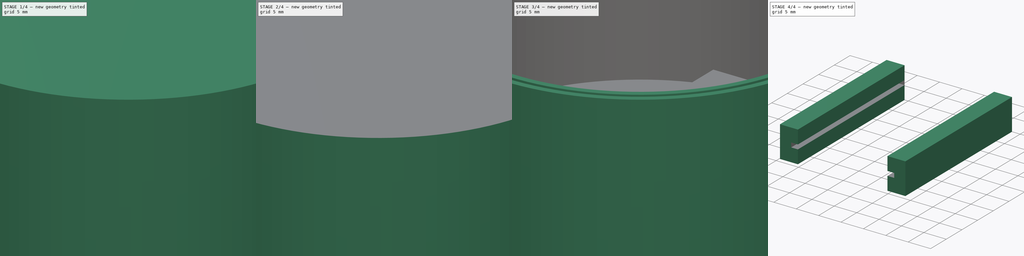
[diagram: build sequence overview — one tinted view per stage of 4, left to right]
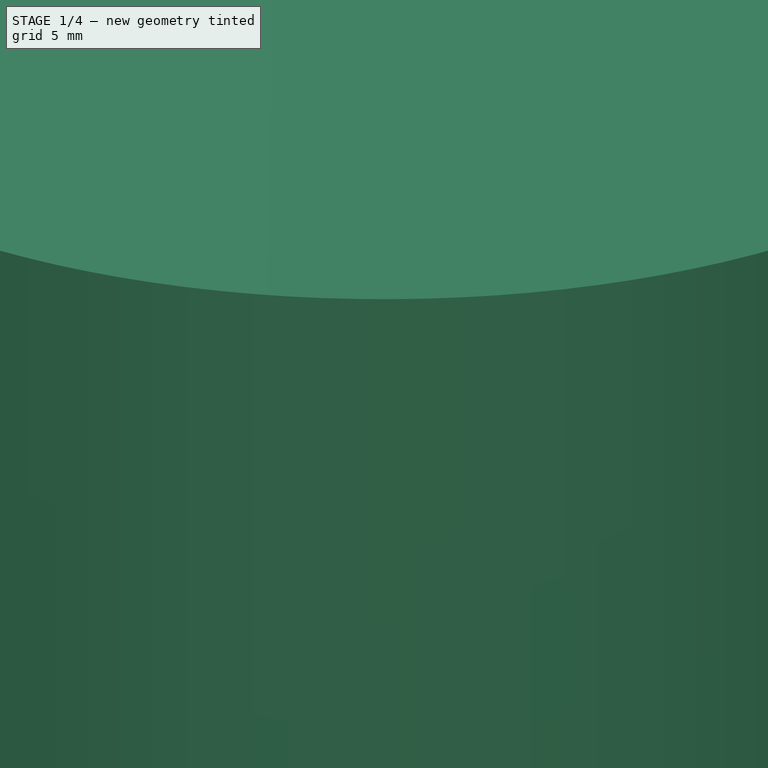
[diagram: stage 1 of 4 — iso view after this stage's code; geometry added in this stage tinted green]
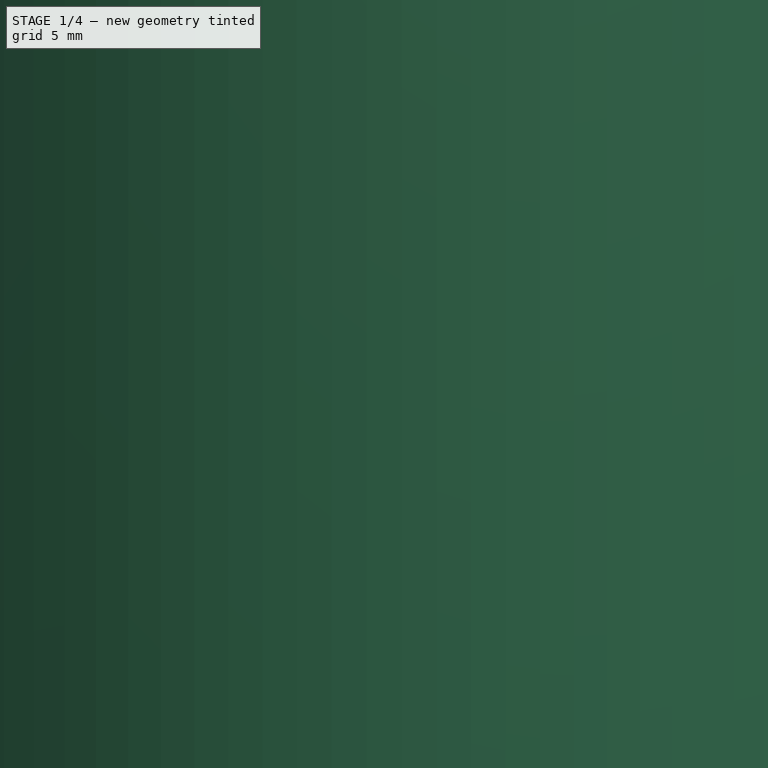
[diagram: stage 1 of 4 — front view after this stage's code; geometry added in this stage tinted green]
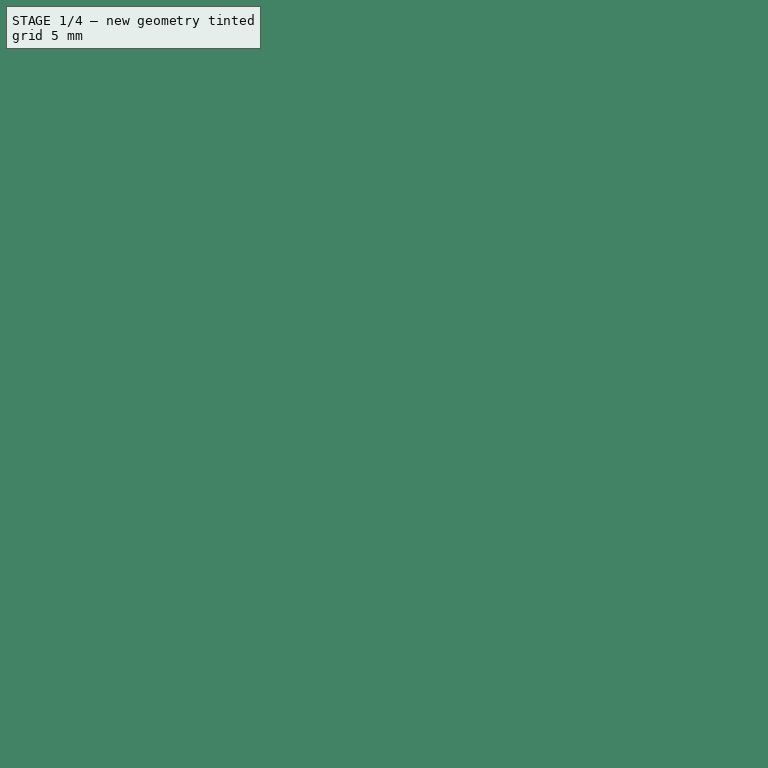
[diagram: stage 1 of 4 — top view after this stage's code; geometry added in this stage tinted green]
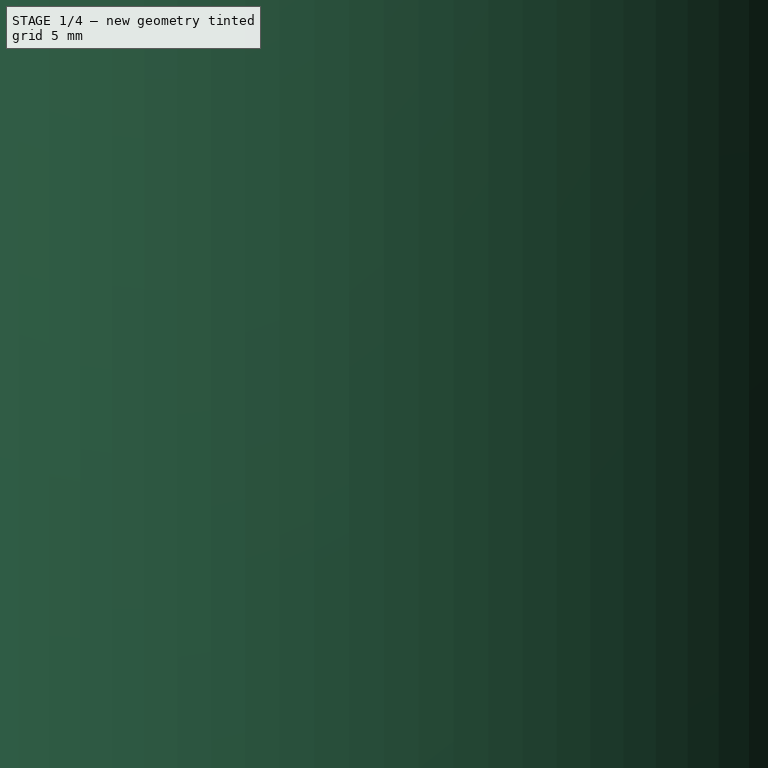
[diagram: stage 1 of 4 — right view after this stage's code; geometry added in this stage tinted green]
FCSTD DOCUMENT  (FreeCAD 0.18R4 (GitTag))
Label: Lamp_bottom
License: All rights reserved
LicenseURL: http://en.wikipedia.org/wiki/All_rights_reserved
objects: Sketcher::SketchObject×5, Part::Extrusion×5, Part::Cut×5, Part::Box×1
note: 16 computed .brp shape members not serialized (recipe doc carries the construction recipe); baked Part::Feature solids carry a one-line shape summary decoded from their .brp

FEATURE [Sketcher::SketchObject] Sketch
  sketch-geometry (1):
    g0: Circle CenterX=0 CenterY=0 CenterZ=0 NormalX=0 NormalY=0 NormalZ=1 AngleXU=0 Radius=50
  constraints (2):
    c: Radius(g0) = 50
    c: Coincident(g0,g-1)
FEATURE [Part::Extrusion] Extrude
  Base = -> Sketch
  Dir = (0,0,1)
  DirMode = 2
  FaceMakerClass = Part::FaceMakerBullseye
  LengthFwd = 60
  LengthRev = 0
  Solid = true
  Symmetric = false
FEATURE [Sketcher::SketchObject] Sketch003
  Placement = pos=(0,50,0) rot=(1,0,0;1.5708rad)
  sketch-geometry (6):
    g0: LineSegment StartX=-2.5 StartY=23 StartZ=0 EndX=2.5 EndY=23 EndZ=0
    g1: LineSegment StartX=2.5 StartY=20 StartZ=0 EndX=-2.5 EndY=20 EndZ=0
    g2: LineSegment StartX=-2.5 StartY=20 StartZ=0 EndX=-3.5 EndY=21.7321 EndZ=0
    g3: LineSegment StartX=2.5 StartY=20 StartZ=0 EndX=3.5 EndY=21.7321 EndZ=0
    g4: LineSegment StartX=3.5 StartY=21.7321 StartZ=0 EndX=2.5 EndY=23 EndZ=0
    g5: LineSegment StartX=-3.5 StartY=21.7321 StartZ=0 EndX=-2.5 EndY=23 EndZ=0
  constraints (18):
    c: Parallel(g0,g-1)
    c: DistanceY(g-1,g0) = 23
    c: DistanceX(g0,g0) = 5
    c: DistanceX(g-1,g0) = 2.5
    c: Parallel(g1,g-1)
    c: DistanceY(g1,g0) = 3
    c: Distance(g1) = 5
    c: DistanceX(g-1,g1) = 2.5
    c: Coincident(g2,g1)
    c: Distance(g2) = 2
    c: DistanceX(g2,g2) = 1
    c: Distance(g3) = 2
    c: Coincident(g1,g3)
    c: DistanceX(g3,g3) = 1
    c: Coincident(g0,g4)
    c: Coincident(g3,g4)
    c: Coincident(g0,g5)
    c: Coincident(g2,g5)
FEATURE [Part::Extrusion] Extrude003
  Base = -> Sketch003
  Dir = (0,-1,-2e-16)
  DirMode = 2
  FaceMakerClass = Part::FaceMakerBullseye
  LengthFwd = 4.5
  LengthRev = 0
  Solid = true
  Symmetric = false
FEATURE [Part::Box] Box  label="Куб"
  AttacherType = Attacher::AttachEngine3D
  Height = 1
  Length = 23
  Placement = pos=(-11.5,9.8,23) rot=(0,0,1;0rad)
  Width = 34
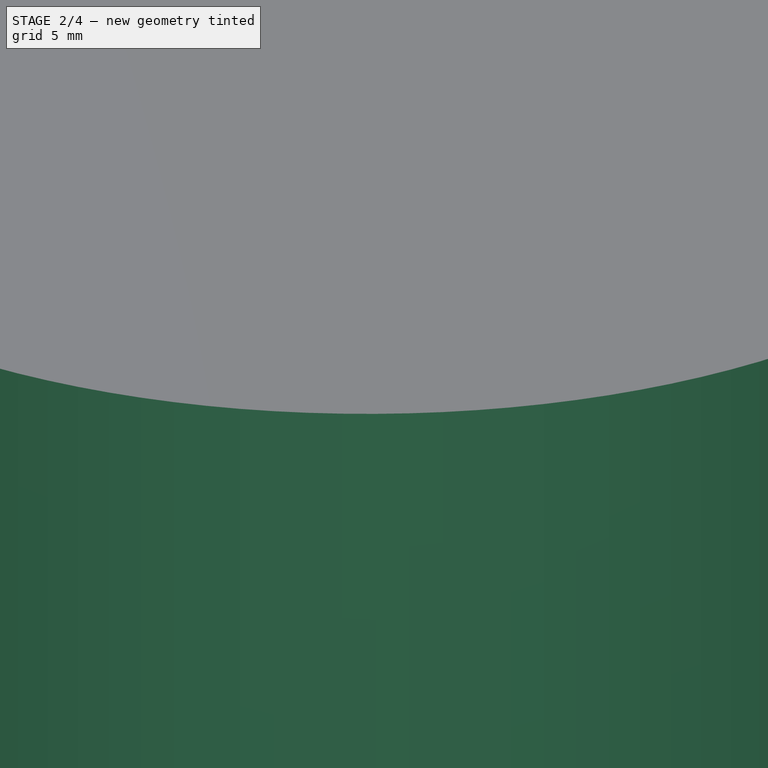
[diagram: stage 2 of 4 — iso view after this stage's code; geometry added in this stage tinted green]
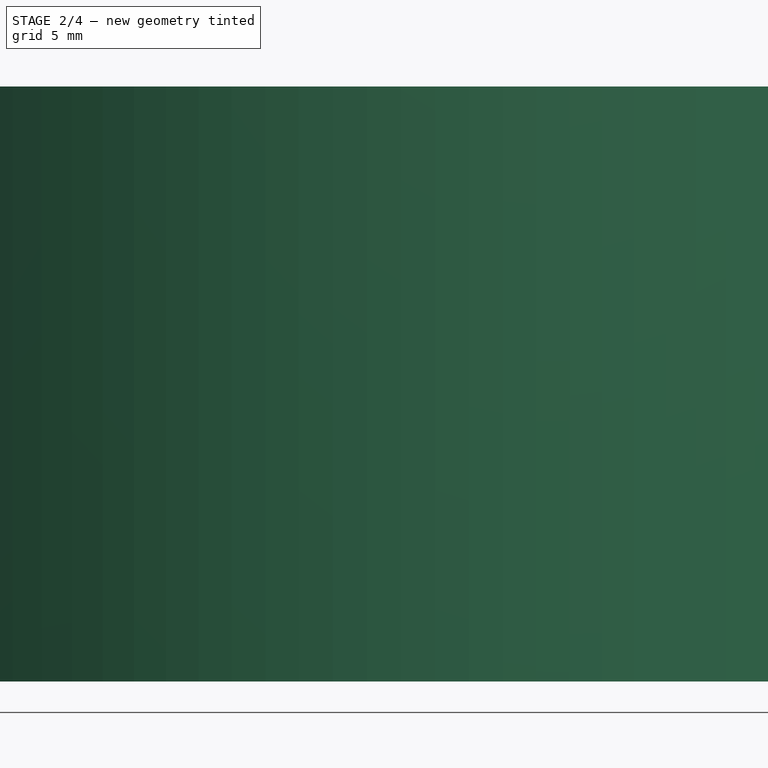
[diagram: stage 2 of 4 — front view after this stage's code; geometry added in this stage tinted green]
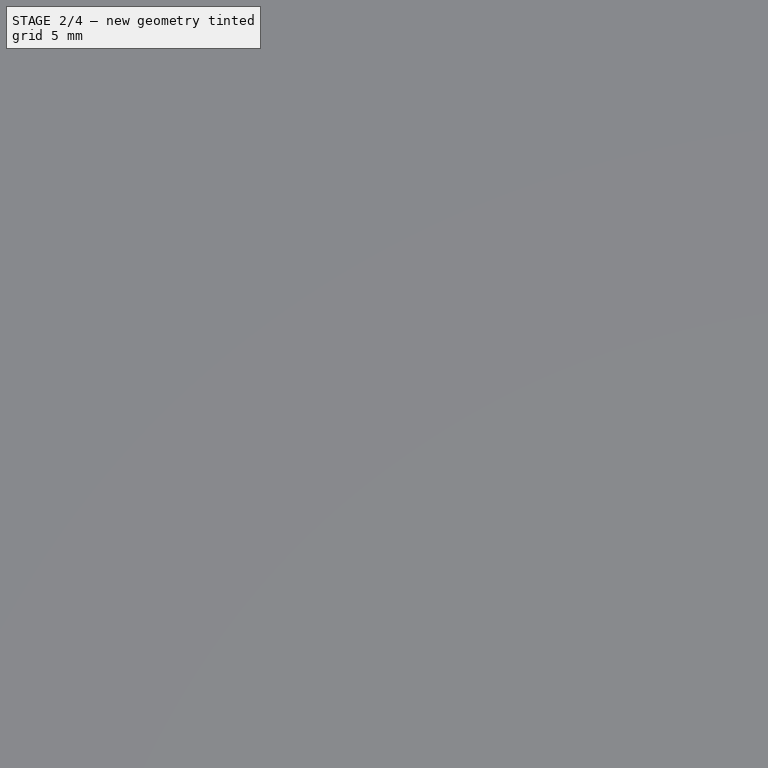
[diagram: stage 2 of 4 — top view after this stage's code; geometry added in this stage tinted green]
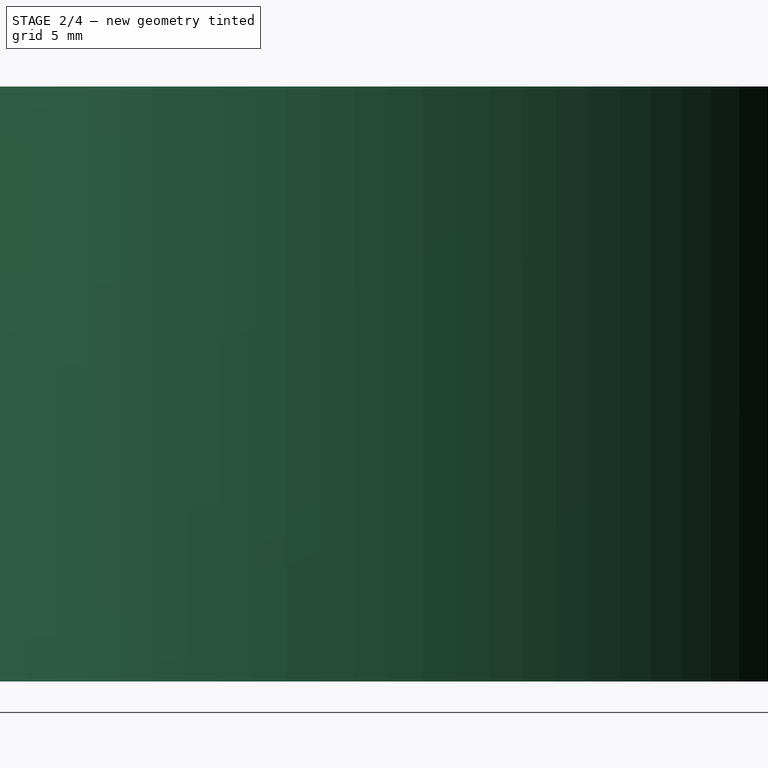
[diagram: stage 2 of 4 — right view after this stage's code; geometry added in this stage tinted green]
FEATURE [Sketcher::SketchObject] Sketch001
  MapMode = 5
  Placement = pos=(0,0,60) rot=(0,0,1;0rad)
  Support = -> [Extrude]
  sketch-geometry (2):
    g0: Circle CenterX=0 CenterY=0 CenterZ=0 NormalX=0 NormalY=0 NormalZ=1 AngleXU=0 Radius=48.5
    g1: Circle CenterX=0 CenterY=0 CenterZ=0 NormalX=0 NormalY=0 NormalZ=1 AngleXU=0 Radius=47.5
  constraints (4):
    c: Radius(g0) = 48.5
    c: Coincident(g0,g-1)
    c: Radius(g1) = 47.5
    c: Coincident(g1,g0)
FEATURE [Part::Extrusion] Extrude001
  Base = -> Sketch001
  Dir = (0,0,1)
  DirMode = 2
  FaceMakerClass = Part::FaceMakerBullseye
  LengthFwd = -20
  LengthRev = 0
  Solid = true
  Symmetric = false
FEATURE [Part::Cut] Cut
  Base = -> Extrude
  Tool = -> Extrude001
FEATURE [Sketcher::SketchObject] Sketch002
  MapMode = 5
  Placement = pos=(0,0,60) rot=(0,0,1;0rad)
  Support = -> [Cut]
  sketch-geometry (1):
    g0: Circle CenterX=0 CenterY=0 CenterZ=0 NormalX=0 NormalY=0 NormalZ=1 AngleXU=0 Radius=46
  constraints (2):
    c: Radius(g0) = 46
    c: Coincident(g0,g-1)
FEATURE [Part::Extrusion] Extrude002
  Base = -> Sketch002
  Dir = (0,0,1)
  DirMode = 2
  FaceMakerClass = Part::FaceMakerBullseye
  LengthFwd = -40
  LengthRev = 0
  Solid = true
  Symmetric = false
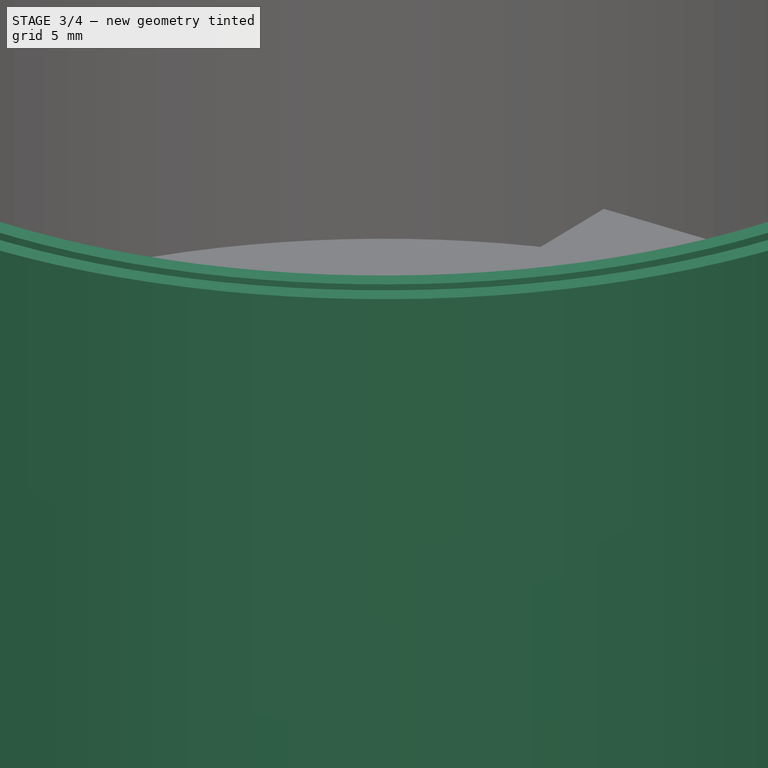
[diagram: stage 3 of 4 — iso view after this stage's code; geometry added in this stage tinted green]
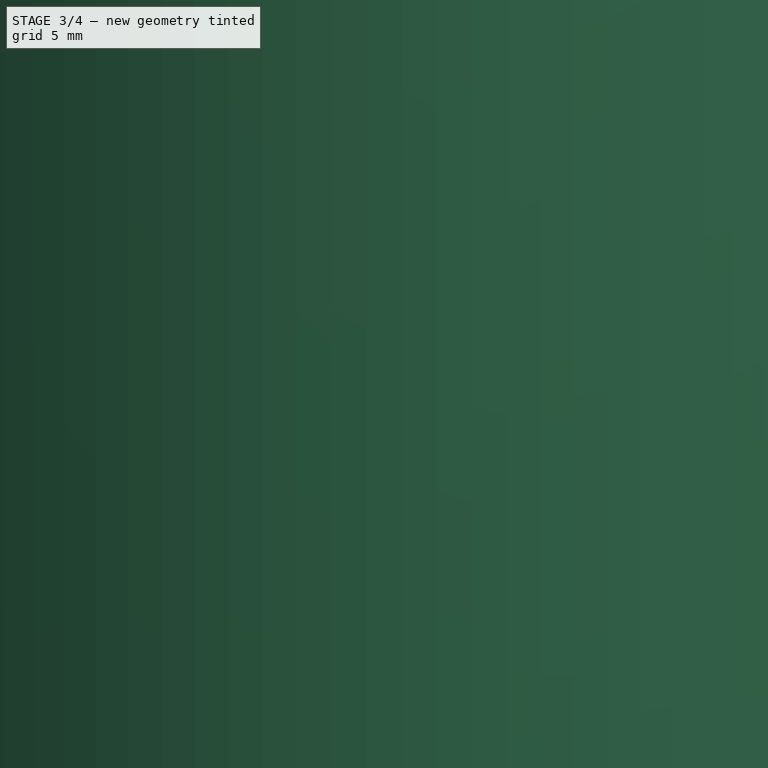
[diagram: stage 3 of 4 — front view after this stage's code; geometry added in this stage tinted green]
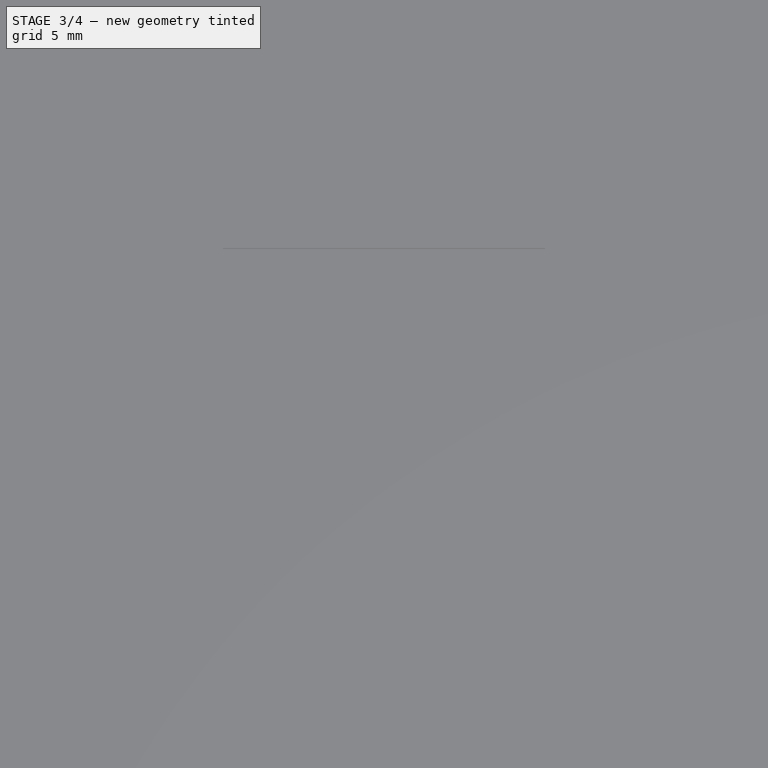
[diagram: stage 3 of 4 — top view after this stage's code; geometry added in this stage tinted green]
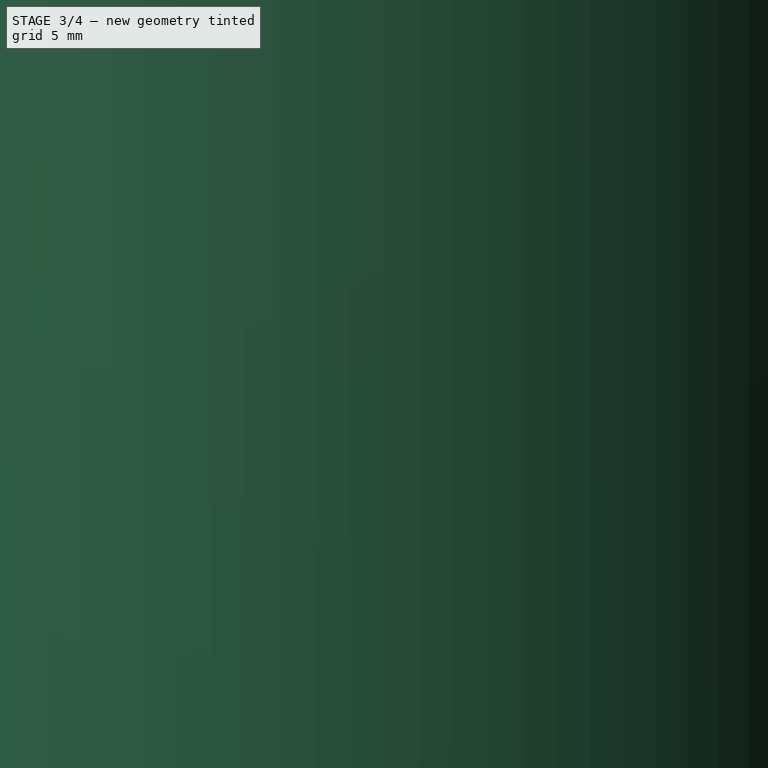
[diagram: stage 3 of 4 — right view after this stage's code; geometry added in this stage tinted green]
FEATURE [Part::Cut] Cut001
  Base = -> Extrude
  Tool = -> Extrude001
FEATURE [Part::Cut] Cut002
  Base = -> Cut001
  Tool = -> Extrude002
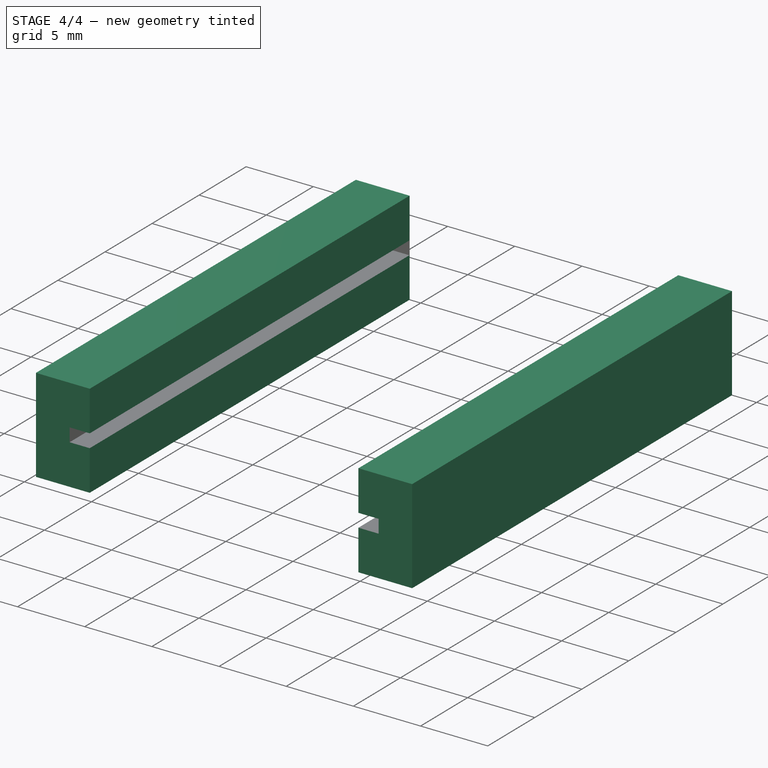
[diagram: stage 4 of 4 — iso view after this stage's code; geometry added in this stage tinted green]
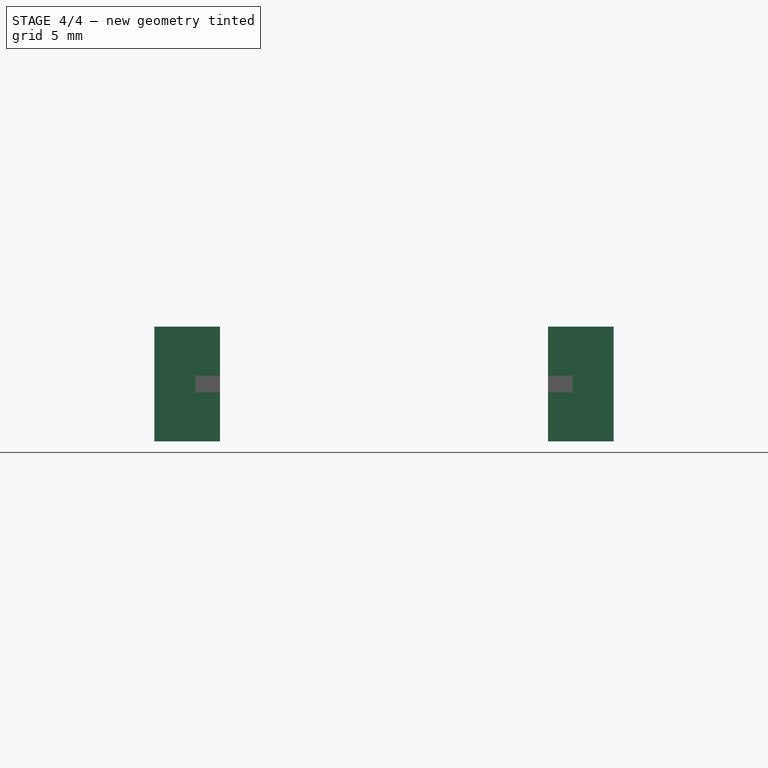
[diagram: stage 4 of 4 — front view after this stage's code; geometry added in this stage tinted green]
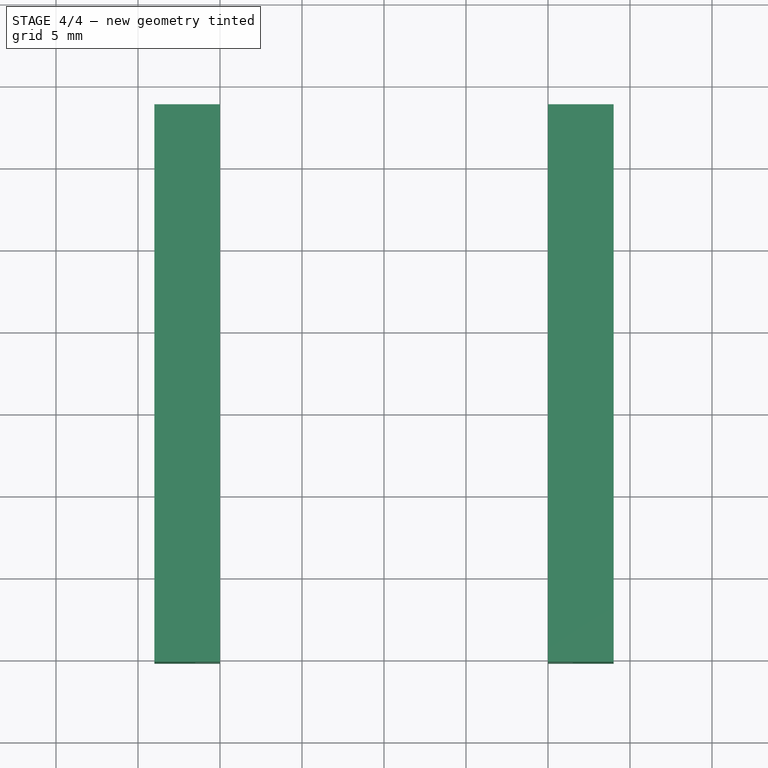
[diagram: stage 4 of 4 — top view after this stage's code; geometry added in this stage tinted green]
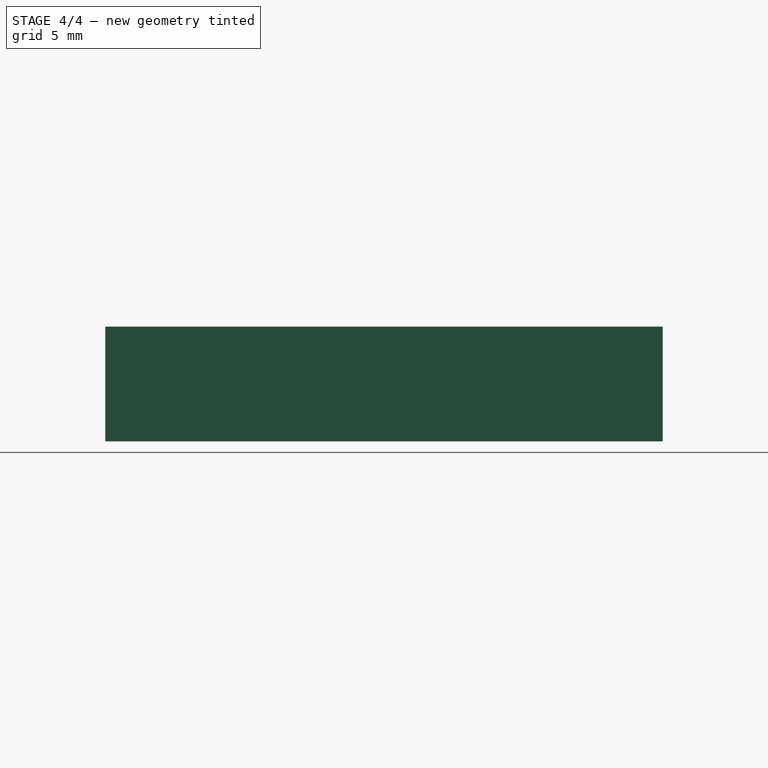
[diagram: stage 4 of 4 — right view after this stage's code; geometry added in this stage tinted green]
FEATURE [Part::Cut] Cut003
  Base = -> Cut002
  Tool = -> Extrude003
FEATURE [Sketcher::SketchObject] Sketch004
  ExternalGeometry = -> [Cut003]
  MapMode = 5
  Placement = pos=(0,0,20) rot=(0,0,1;0rad)
  Support = -> [Cut003]
  sketch-geometry (8):
    g0: LineSegment StartX=-14 StartY=43.8178 StartZ=0 EndX=-14 EndY=9.8178 EndZ=0
    g1: LineSegment StartX=14 StartY=43.8178 StartZ=0 EndX=14 EndY=9.8178 EndZ=0
    g2: LineSegment StartX=-14 StartY=9.8178 StartZ=0 EndX=-10 EndY=9.8178 EndZ=0
    g3: LineSegment StartX=-10 StartY=43.8178 StartZ=0 EndX=-10 EndY=9.8178 EndZ=0
    g4: LineSegment StartX=10 StartY=9.8178 StartZ=0 EndX=14 EndY=9.8178 EndZ=0
    g5: LineSegment StartX=10 StartY=43.8178 StartZ=0 EndX=10 EndY=9.8178 EndZ=0
    g6: LineSegment StartX=-14 StartY=43.8178 StartZ=0 EndX=-10 EndY=43.8178 EndZ=0
    g7: LineSegment StartX=10 StartY=43.8178 StartZ=0 EndX=14 EndY=43.8178 EndZ=0
  constraints (24):
    c: Distance(g0) = 34
    c: Parallel(g0,g-2)
    c: Distance(g1) = 34
    c: Parallel(g1,g-2)
    c: Distance(g2) = 4
    c: Parallel(g2,g-1)
    c: Coincident(g2,g0)
    c: Distance(g3) = 34
    c: Parallel(g3,g-2)
    c: Coincident(g2,g3)
    c: Distance(g4) = 4
    c: Parallel(g4,g-1)
    c: Coincident(g1,g4)
    c: Distance(g5) = 34
    c: Parallel(g5,g-2)
    c: Coincident(g4,g5)
    c: Parallel(g7,g-1)
    c: Distance(g6) = 4
    c: Distance(g7) = 4
    c: Parallel(g6,g-1)
    c: PointOnObject(g0,g-3)
    c: Coincident(g0,g6)
    c: PointOnObject(g1,g-3)
    c: Coincident(g7,g1)
FEATURE [Part::Extrusion] Extrude004
  Base = -> Sketch004
  Dir = (0,0,1)
  DirMode = 2
  FaceMakerClass = Part::FaceMakerBullseye
  LengthFwd = 7
  LengthRev = 0
  Solid = true
  Symmetric = false
FEATURE [Part::Cut] Cut004
  Base = -> Extrude004
  Tool = -> Box
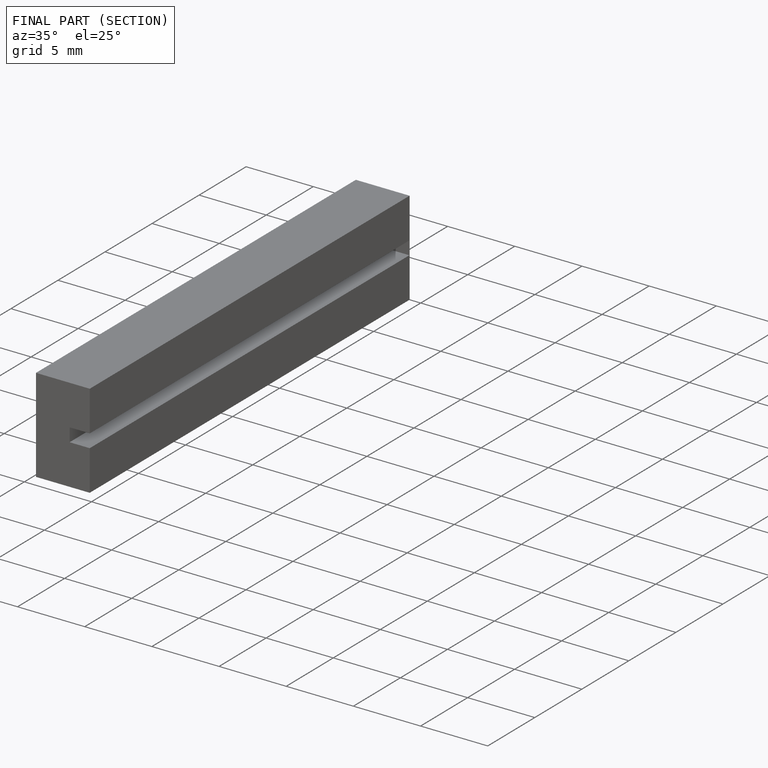
[diagram: finished part — half-section view (interior)]
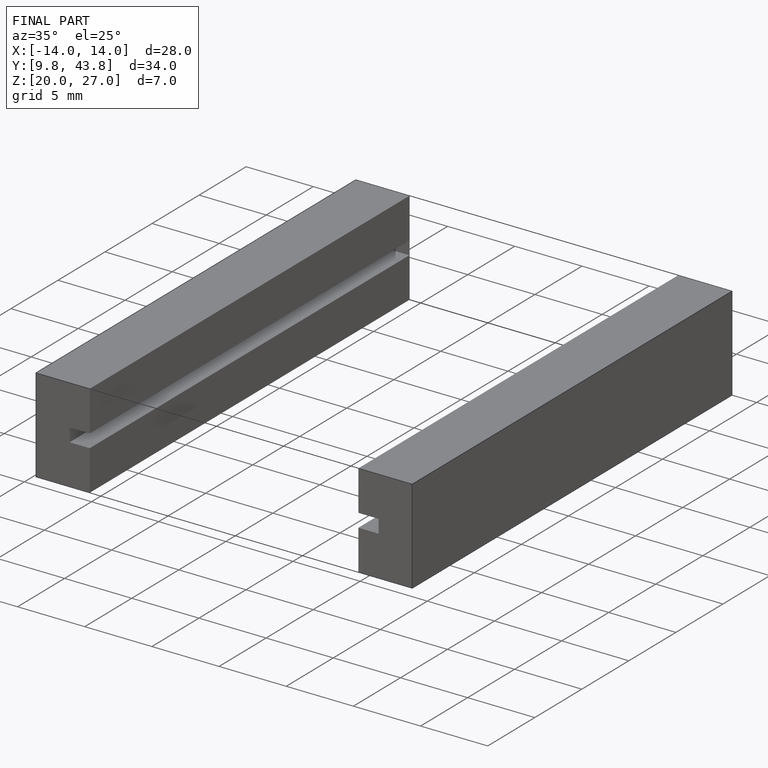
[diagram: finished part — iso view with bounding-box wireframe]
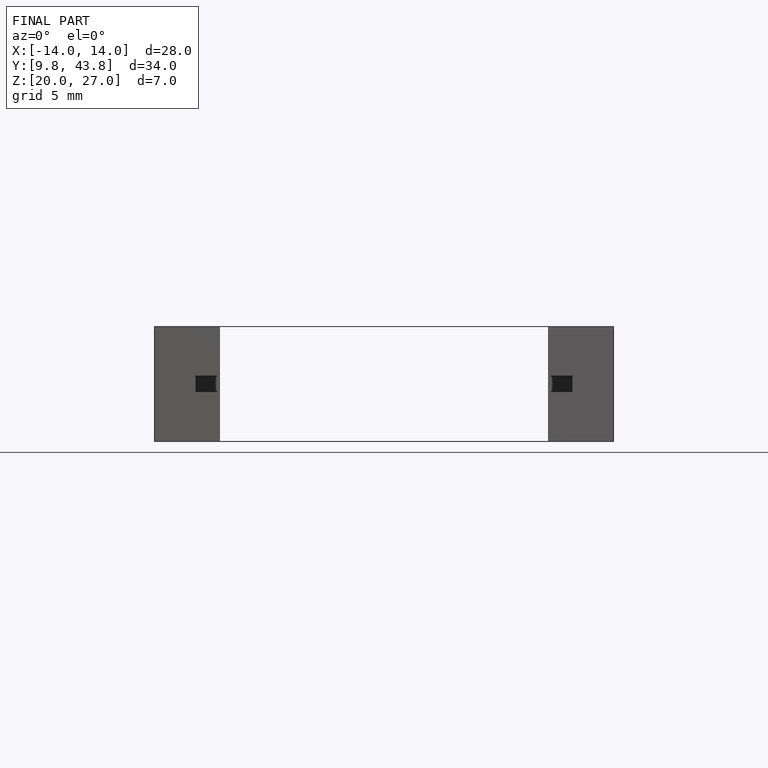
[diagram: finished part — front view with bounding-box wireframe]
